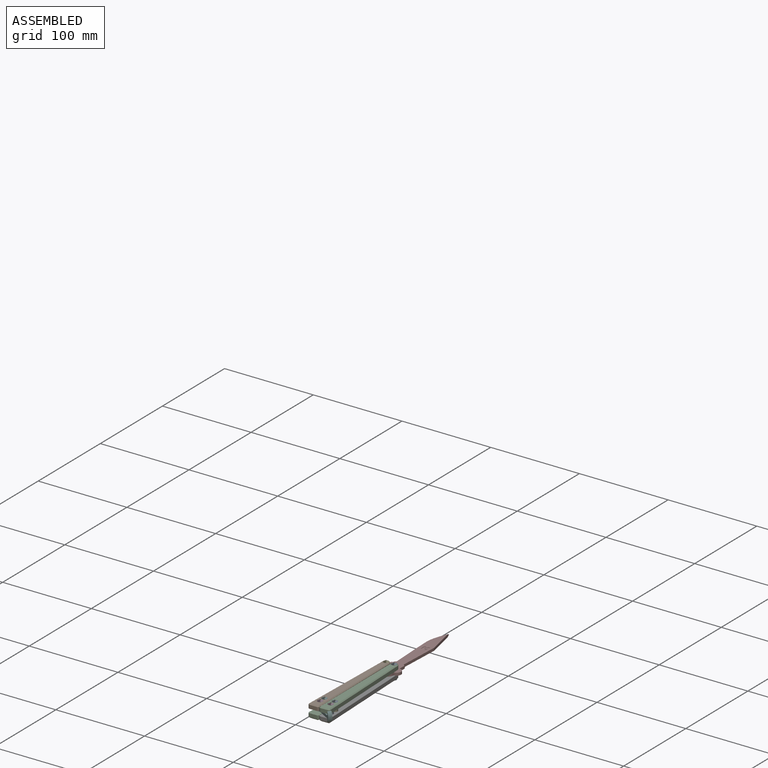
[diagram: assembled view]
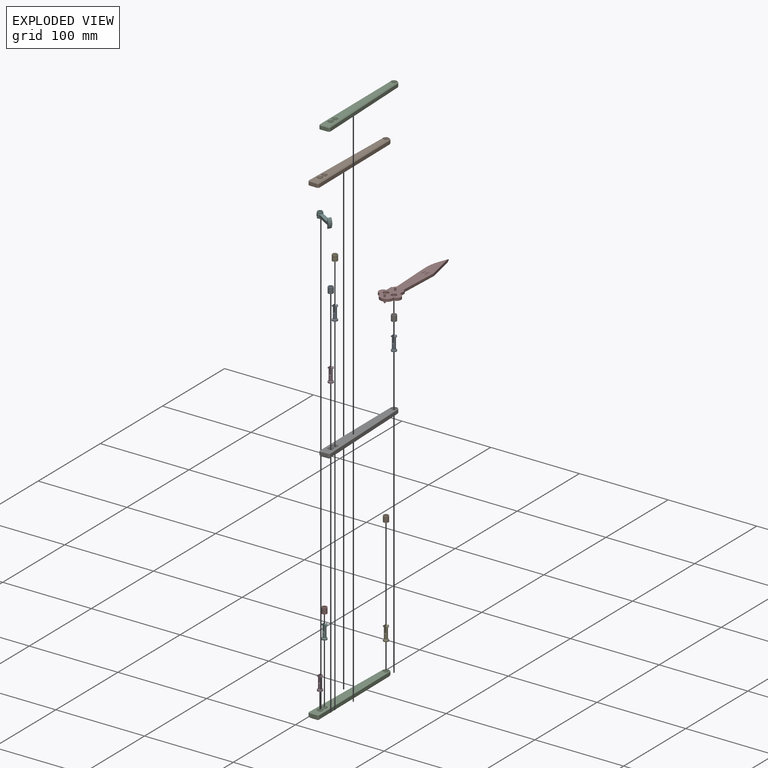
[diagram: exploded view]
GUIDED TOUR — MATED ASSEMBLY (Onshape document c22fe55abaea936f5209b5d4, AutoMate assembly c22fe55abaea936f5209b5d4_3cdbc63c3f95b4cfe2115290_4861135776a58d1719c82f19_default)

This assembly has 17 components, labeled P0..P16 below (a component is one placed occurrence of a part; the same part can appear more than once), held together by 16 mates. A mate is a constraint between two components; its type names the relative motion it leaves free:
  FASTENED — locks the two components together rigidly (no relative motion),
  REVOLUTE — leaves rotation about the listed axis free (a hinge).
Axis/direction vectors are unit vectors and 'through' points are millimeter coordinates, both in the assembly's world frame.

MATES
  1. REVOLUTE "Revolute 3": P5 <-> P2, axis (0.000, 0.000, -1.000) through (11.71, -177.00, 8.34) mm
  2. FASTENED "Fastened 5": P14 <-> P4, direction (0.000, 0.000, 1.000) through (23.59, -169.99, 8.34) mm
  3. FASTENED "Fastened 6": P2 <-> P7, direction (0.000, 0.000, 1.000) through (11.76, -170.00, 8.34) mm
  4. REVOLUTE "Revolute 2": P14 <-> P6, axis (0.000, 0.000, 1.000) through (21.54, -72.01, 8.34) mm
  5. FASTENED "Fastened 8": P12 <-> P2, direction (0.000, 0.000, 1.000) through (12.54, -72.01, 5.34) mm
  6. FASTENED "Fastened 10": P13 <-> P2, direction (0.000, 0.000, 1.000) through (11.76, -170.00, 5.34) mm
  7. FASTENED "Fastened 1": P1 <-> P15, direction (0.000, 0.000, -1.000) through (12.54, -72.01, 11.59) mm
  8. FASTENED "Fastened 11": P3 <-> P2, direction (0.000, 0.000, 1.000) through (11.71, -177.00, 5.34) mm
  9. FASTENED "Fastened 3": P7 <-> P9, direction (0.000, 0.000, 1.000) through (11.76, -170.00, 14.84) mm
  10. FASTENED "Fastened 7": P16 <-> P14, direction (0.000, 0.000, 1.000) through (21.54, -72.01, 5.34) mm
  11. FASTENED "Fastened 12": P11 <-> P14, direction (0.000, 0.000, 1.000) through (23.74, -176.98, 5.34) mm
  12. FASTENED "Fastened 13": P0 <-> P14, direction (0.000, 0.000, -1.000) through (23.74, -176.98, 8.34) mm
  13. FASTENED "Fastened 4": P4 <-> P10, direction (0.000, 0.000, 1.000) through (23.59, -169.99, 14.84) mm
  14. FASTENED "Fastened 9": P8 <-> P14, direction (0.000, 0.000, 1.000) through (23.59, -169.99, 5.34) mm
  15. FASTENED "Fastened 2": P6 <-> P15, direction (0.000, 0.000, -1.000) through (21.54, -72.01, 11.59) mm
  16. REVOLUTE "Revolute 1": P2 <-> P1, axis (0.000, 0.000, 1.000) through (12.54, -72.01, 8.34) mm

ASSEMBLY ORDER
  1. P2 — the base component [order heuristic]
  2. P1 [order heuristic]
  3. P3 [order heuristic]
  4. P5 [order heuristic]
  5. P7 [order heuristic]
  6. P12 [order heuristic]
  7. P13 [order heuristic]
  8. P9 [order heuristic]
  9. P15 [order heuristic]
  10. P6 [order heuristic]
  11. P14 [order heuristic]
  12. P0 [order heuristic]
  13. P4 [order heuristic]
  14. P8 [order heuristic]
  15. P11 [order heuristic]
  16. P16 [order heuristic]
  17. P10 [order heuristic]
Order-tag legend:
  [order heuristic] — this assembly is geometrically interlocked (no collision-free removal order exists), so components are listed in mate-graph order; insertion feasibility is not verified.

Of the 17 components, 11 carry the full construction recipe — the FeatureScript program that regenerates the part's solid from scratch; the rest are supplied as boundary geometry only.
Because this assembly has more than 12 components, the tour below covers the 12 most significant ones individually (every recipe-attached component first, then the largest by part volume), in assembly order; the remaining 5 are summarized together in a grouped section at the end.
Each toured component is shown spotlighted twice — in the assembled view, then in the exploded view, where a leader line traces a displaced component back to its assembled socket (saturated green if recipe-attached, orange if geometry-only; every other component desaturated gray) — followed by its recipe or geometry summary and the mates that hold it.
NOTE — document 2 of 2 of this assembly tour. The two overview renders and the header above are repeated from document 1; the component sections below continue where the previous document stopped.
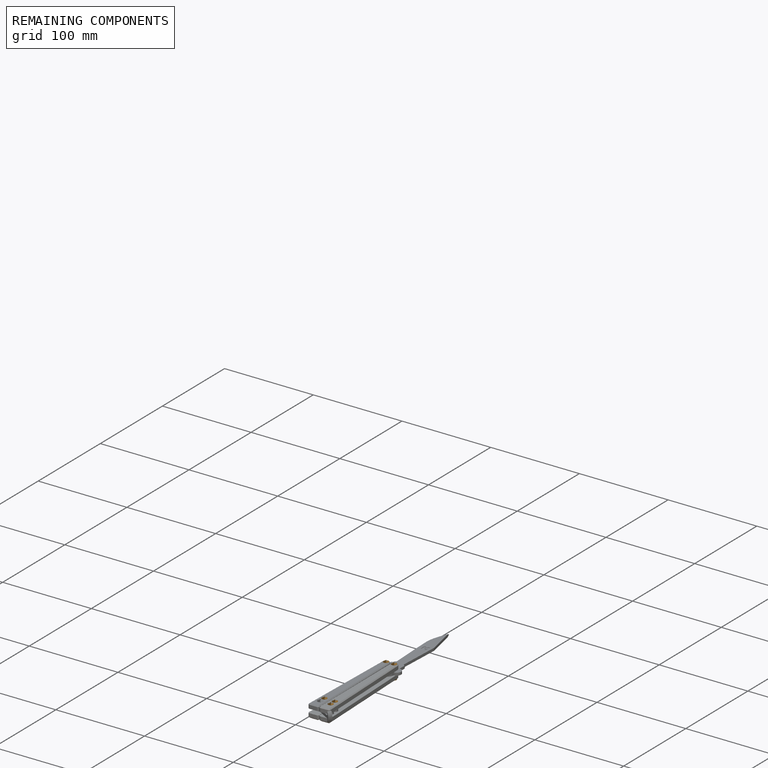
[diagram: remaining components — assembled]
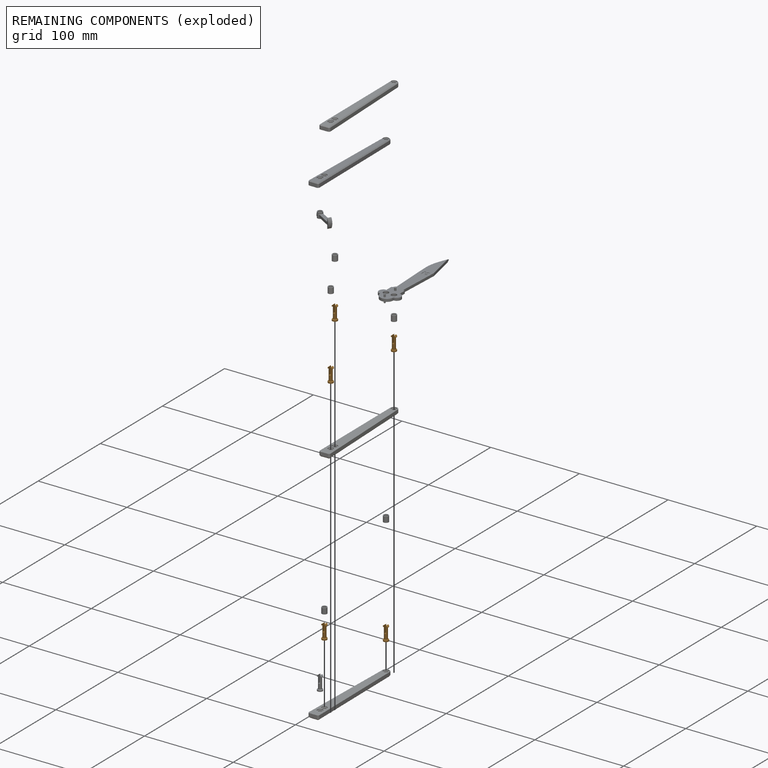
[diagram: remaining components — exploded]
REMAINING COMPONENTS (grouped) — the 5 components below fall outside the per-component tour by the significance rule stated above; both spotlight views highlight the whole group.
  P12: bounding box 16.4 x 5.8 x 5.8 mm, volume 161 mm^3. Held by: FASTENED mate "Fastened 8" to P2.
  P13: bounding box 16.4 x 5.8 x 5.8 mm, volume 161 mm^3. Held by: FASTENED mate "Fastened 10" to P2.
  P8: bounding box 16.4 x 5.8 x 5.8 mm, volume 161 mm^3. Held by: FASTENED mate "Fastened 9" to P14.
  P11: bounding box 16.4 x 5.8 x 5.8 mm, volume 161 mm^3. Held by: FASTENED mate "Fastened 12" to P14.
  P16: bounding box 16.4 x 5.8 x 5.8 mm, volume 161 mm^3. Held by: FASTENED mate "Fastened 7" to P14.
PROVENANCE & LICENSES
Assembly (occurrences, transforms, mates, per-part STEP geometry): AutoMate dataset, Zenodo record 7776208, CC0.
Construction recipes: CADFS (HuggingFace VladPyatov/CADFS, CC-BY-4.0, layered over the ABC dataset), FeatureScript reconstruction programs keyed by ABC model id.
Join: ABC meta listings map ABC model id -> Onshape documentId; within a shared document, parts are matched by geometric signature (bounding-box dims + volume at 0.1% relative tolerance, exact B-rep face/solid counts).
Verification: 11 of this assembly's 17 components carry a recipe attachment, and every attachment is mesh-verified: the CADFS STEP and the AutoMate member STEP were compared as meshes in their shared local frame (symmetric sampled-point-to-mesh distance); worst across the 11 attachments: below the mesh-comparison resolution (tessellation chordal tolerance ~0.181 mm) on a 121 mm part.
Renders: orthographic iso camera (az 35 / el 25); the floor grid conveys scale (grid pitch printed in each image; no ruler). In the exploded view each component is displaced by its stored offset vector: the offsets alone carry the explosion direction (mate normal/axis signs are not orientation cues and do not encode it), and separation distances are assigned per mate-chain, not proportionally to assembly-order depth.
